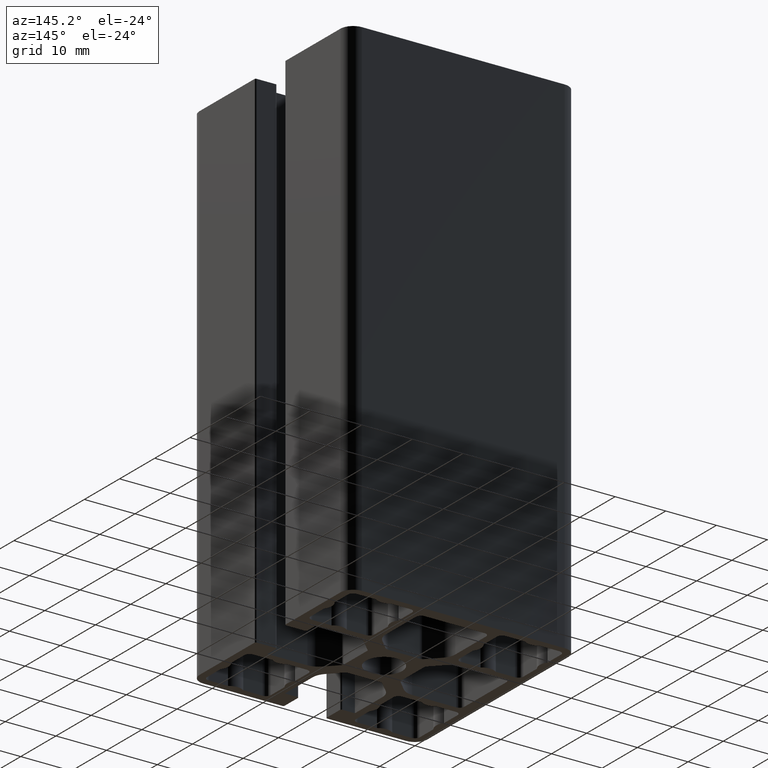
[diagram: clean part render]
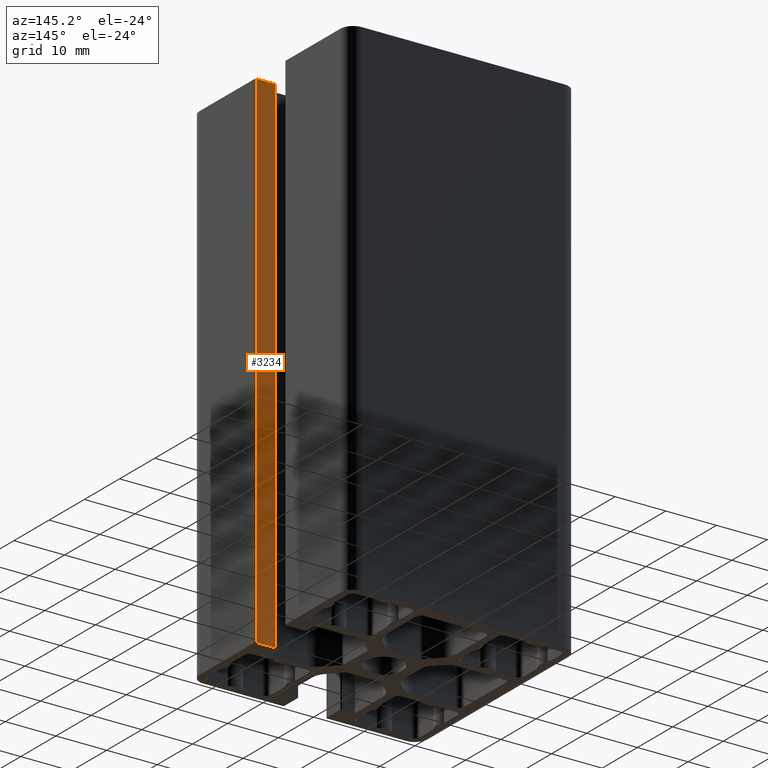
[diagram: same view with one face highlighted and labeled with its STEP entity id]
A machine part, auxiliary view. The second image highlights one B-rep face of the part: STEP entity #3234.
In plain terms, the highlighted planar face has unit normal (0, -1, 0).
Its self-contained STEP definition (entity closure, byte-faithful):
#403=FACE_OUTER_BOUND('',#571,.T.);
#571=EDGE_LOOP('',(#2420,#2421,#2422,#2423));
#816=LINE('',#5203,#1116);
#817=LINE('',#5206,#1117);
#818=LINE('',#5208,#1118);
#819=LINE('',#5209,#1119);
#1116=VECTOR('',#4194,100.);
#1117=VECTOR('',#4197,3.7);
#1118=VECTOR('',#4198,3.7);
#1119=VECTOR('',#4199,100.);
#1435=VERTEX_POINT('',#5197);
#1437=VERTEX_POINT('',#5201);
#1438=VERTEX_POINT('',#5205);
#1439=VERTEX_POINT('',#5207);
#1846=EDGE_CURVE('',#1437,#1435,#816,.T.);
#1847=EDGE_CURVE('',#1435,#1438,#817,.T.);
#1848=EDGE_CURVE('',#1439,#1437,#818,.T.);
#1849=EDGE_CURVE('',#1439,#1438,#819,.T.);
#2420=ORIENTED_EDGE('',*,*,#1847,.F.);
#2421=ORIENTED_EDGE('',*,*,#1846,.F.);
#2422=ORIENTED_EDGE('',*,*,#1848,.F.);
#2423=ORIENTED_EDGE('',*,*,#1849,.T.);
#3114=PLANE('',#3503);
#3234=ADVANCED_FACE('',(#403),#3114,.F.);
#3503=AXIS2_PLACEMENT_3D('',#5204,#4195,#4196);
#4194=DIRECTION('',(0.,0.,1.));
#4195=DIRECTION('center_axis',(2.51000421648363E-13,-1.,0.));
#4196=DIRECTION('ref_axis',(1.,2.50999221407255E-13,0.));
#4197=DIRECTION('',(-1.,-2.51000421648363E-13,0.));
#4198=DIRECTION('',(1.,2.51000421648363E-13,0.));
#4199=DIRECTION('',(0.,0.,1.));
#5197=CARTESIAN_POINT('',(22.199999999996,-4.14999999999447,100.));
#5201=CARTESIAN_POINT('',(22.199999999996,-4.14999999999447,0.));
#5203=CARTESIAN_POINT('',(22.199999999996,-4.14999999999447,0.));
#5204=CARTESIAN_POINT('Origin',(18.499999999996,-4.1499999999954,0.));
#5205=CARTESIAN_POINT('',(18.499999999996,-4.1499999999954,100.));
#5206=CARTESIAN_POINT('',(9.24999999999854,-4.14999999999772,100.));
#5207=CARTESIAN_POINT('',(18.499999999996,-4.1499999999954,0.));
#5208=CARTESIAN_POINT('',(9.24999999999854,-4.14999999999772,0.));
#5209=CARTESIAN_POINT('',(18.499999999996,-4.1499999999954,0.));